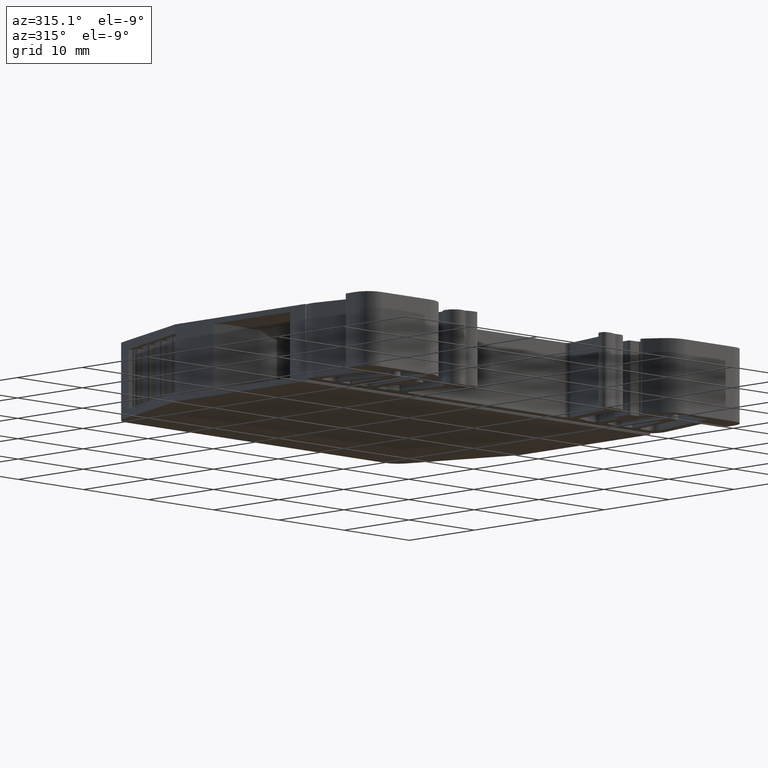
[diagram: clean part render]
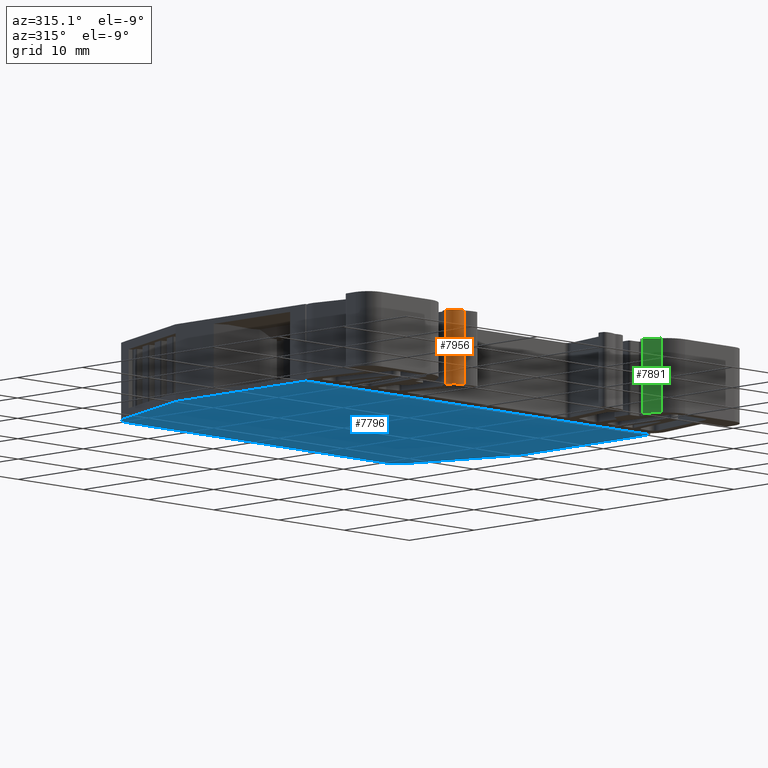
[diagram: same view with three faces highlighted in distinct colors, each labeled with its STEP entity id]
A machine part, auxiliary view with three faces highlighted in distinct colors.
Their STEP definitions:

[orange] entity #7956 — the highlighted cylindrical surface (edge-blend (fillet) strip) has radius 1.2453 mm, axis along (0, 0, -1).
#597 = EDGE_CURVE ( 'NONE', #11893, #8544, #10714, .T. ) ;
#618 = EDGE_CURVE ( 'NONE', #8541, #11869, #10746, .T. ) ;
#627 = EDGE_CURVE ( 'NONE', #8541, #11893, #4153, .T. ) ;
#653 = EDGE_CURVE ( 'NONE', #8544, #11869, #4250, .T. ) ;
#4048 = DIRECTION ( 'NONE',  ( 0.0000000000000000000, 0.0000000000000000000, -1.000000000000000000 ) ) ;
#4062 = DIRECTION ( 'NONE',  ( -1.000000000000000000, 0.0000000000000000000, 0.0000000000000000000 ) ) ;
#4067 = CARTESIAN_POINT ( 'NONE',  ( 543.5399750294640200, 246.4478890086091700, 8.193043958385491300 ) ) ;
#4092 = DIRECTION ( 'NONE',  ( 0.0000000000000000000, 0.0000000000000000000, -1.000000000000000000 ) ) ;
#4109 = DIRECTION ( 'NONE',  ( -1.000000000000000000, 0.0000000000000000000, 0.0000000000000000000 ) ) ;
#4118 = CARTESIAN_POINT ( 'NONE',  ( 543.5399750294640200, 246.4478890086091700, -0.006012645352508963500 ) ) ;
#4153 = LINE ( 'NONE', #4159, #10741 ) ;
#4156 = DIRECTION ( 'NONE',  ( -0.0000000000000000000, -0.0000000000000000000, 1.000000000000000000 ) ) ;
#4159 = CARTESIAN_POINT ( 'NONE',  ( 543.9342575827373600, 245.2666730820099600, 8.178043958385492500 ) ) ;
#4249 = CARTESIAN_POINT ( 'NONE',  ( 542.2946920106015800, 246.4478890086091700, 8.178043958385492500 ) ) ;
#4250 = LINE ( 'NONE', #4249, #10804 ) ;
#4254 = DIRECTION ( 'NONE',  ( 0.0000000000000000000, 0.0000000000000000000, -1.000000000000000000 ) ) ;
#6885 = CARTESIAN_POINT ( 'NONE',  ( 543.9342575827373600, 245.2666730820101000, -0.006012645352508963500 ) ) ;
#6930 = CARTESIAN_POINT ( 'NONE',  ( 542.2946920106015800, 246.4478890086091700, 8.193043958385491300 ) ) ;
#7201 = CARTESIAN_POINT ( 'NONE',  ( 543.9342575827373600, 245.2666730820101000, 8.193043958385491300 ) ) ;
#7210 = CARTESIAN_POINT ( 'NONE',  ( 542.2946920106015800, 246.4478890086091700, -0.006012645352508963500 ) ) ;
#7956 = ADVANCED_FACE ( 'NONE', ( #9217 ), #9224, .T. ) ;
#8152 = ORIENTED_EDGE ( 'NONE', *, *, #597, .T. ) ;
#8164 = ORIENTED_EDGE ( 'NONE', *, *, #627, .T. ) ;
#8194 = ORIENTED_EDGE ( 'NONE', *, *, #653, .T. ) ;
#8202 = ORIENTED_EDGE ( 'NONE', *, *, #618, .F. ) ;
#8541 = VERTEX_POINT ( 'NONE', #6885 ) ;
#8544 = VERTEX_POINT ( 'NONE', #6930 ) ;
#9185 = DIRECTION ( 'NONE',  ( 0.0000000000000000000, 0.0000000000000000000, -1.000000000000000000 ) ) ;
#9208 = CARTESIAN_POINT ( 'NONE',  ( 543.5399750294640200, 246.4478890086091700, 8.178043958385492500 ) ) ;
#9217 = FACE_OUTER_BOUND ( 'NONE', #13454, .T. ) ;
#9224 = CYLINDRICAL_SURFACE ( 'NONE', #10095, 1.245283018862508600 ) ;
#9230 = DIRECTION ( 'NONE',  ( -1.000000000000000000, 0.0000000000000000000, 0.0000000000000000000 ) ) ;
#10095 = AXIS2_PLACEMENT_3D ( 'NONE', #9208, #9185, #9230 ) ;
#10714 = CIRCLE ( 'NONE', #10719, 1.245283018862508600 ) ;
#10719 = AXIS2_PLACEMENT_3D ( 'NONE', #4067, #4048, #4062 ) ;
#10741 = VECTOR ( 'NONE', #4156, 1000.000000000000000 ) ;
#10742 = AXIS2_PLACEMENT_3D ( 'NONE', #4118, #4092, #4109 ) ;
#10746 = CIRCLE ( 'NONE', #10742, 1.245283018862508600 ) ;
#10804 = VECTOR ( 'NONE', #4254, 1000.000000000000000 ) ;
#11869 = VERTEX_POINT ( 'NONE', #7210 ) ;
#11893 = VERTEX_POINT ( 'NONE', #7201 ) ;
#13454 = EDGE_LOOP ( 'NONE', ( #8152, #8194, #8202, #8164 ) ) ;

[blue] entity #7796 — the highlighted planar face has unit normal (0, 0, -1).
#211 = EDGE_CURVE ( 'NONE', #14848, #14862, #13343, .T. ) ;
#234 = EDGE_CURVE ( 'NONE', #14785, #14848, #12932, .T. ) ;
#243 = EDGE_CURVE ( 'NONE', #14862, #14800, #12955, .T. ) ;
#5006 = CARTESIAN_POINT ( 'NONE',  ( 575.4885157894668700, 287.0702665175990700, -0.1554466076160027100 ) ) ;
#5010 = DIRECTION ( 'NONE',  ( 1.000000000000000000, 0.0000000000000000000, 0.0000000000000000000 ) ) ;
#5012 = DIRECTION ( 'NONE',  ( -0.0000000000000000000, -0.0000000000000000000, -1.000000000000000000 ) ) ;
#5034 = DIRECTION ( 'NONE',  ( 0.3419620949687317600, 0.9397137466295766300, 0.0000000000000000000 ) ) ;
#5051 = CARTESIAN_POINT ( 'NONE',  ( 529.2320559113798000, 274.9617252141479800, -0.1554466076160087300 ) ) ;
#5074 = LINE ( 'NONE', #5051, #12843 ) ;
#5099 = CARTESIAN_POINT ( 'NONE',  ( 577.3758297860100600, 287.7570606082853100, -0.1554466076160087300 ) ) ;
#5111 = LINE ( 'NONE', #5099, #12858 ) ;
#5112 = DIRECTION ( 'NONE',  ( 0.3419620949687205400, -0.9397137466295806300, 0.0000000000000000000 ) ) ;
#5115 = CARTESIAN_POINT ( 'NONE',  ( 535.7755960330605400, 287.0702665175990700, -0.1554466076160027100 ) ) ;
#5116 = DIRECTION ( 'NONE',  ( -0.0000000000000000000, -0.0000000000000000000, -1.000000000000000000 ) ) ;
#5120 = DIRECTION ( 'NONE',  ( 1.000000000000000000, 0.0000000000000000000, 0.0000000000000000000 ) ) ;
#5127 = LINE ( 'NONE', #5145, #12728 ) ;
#5128 = DIRECTION ( 'NONE',  ( 1.000000000000000000, -0.0000000000000000000, 0.0000000000000000000 ) ) ;
#5145 = CARTESIAN_POINT ( 'NONE',  ( 581.5822718384556500, 289.0786589704231900, -0.1554466076160087300 ) ) ;
#5377 = PLANE ( 'NONE',  #12838 ) ;
#5382 = FACE_OUTER_BOUND ( 'NONE', #12125, .T. ) ;
#5387 = DIRECTION ( 'NONE',  ( 0.0000000000000000000, 0.0000000000000000000, -1.000000000000000000 ) ) ;
#5411 = CARTESIAN_POINT ( 'NONE',  ( 581.5822718384556500, 275.0090101147802700, -0.1554466076160087300 ) ) ;
#5428 = DIRECTION ( 'NONE',  ( -1.000000000000000000, 0.0000000000000000000, -0.0000000000000000000 ) ) ;
#7691 = EDGE_CURVE ( 'NONE', #14755, #14787, #12808, .T. ) ;
#7702 = EDGE_CURVE ( 'NONE', #14800, #14790, #5074, .T. ) ;
#7725 = EDGE_CURVE ( 'NONE', #14787, #14785, #5111, .T. ) ;
#7726 = EDGE_CURVE ( 'NONE', #14790, #14810, #12868, .T. ) ;
#7738 = EDGE_CURVE ( 'NONE', #14810, #14755, #5127, .T. ) ;
#7796 = ADVANCED_FACE ( 'NONE', ( #5382 ), #5377, .T. ) ;
#10238 = VECTOR ( 'NONE', #12958, 1000.000000000000000 ) ;
#10261 = VECTOR ( 'NONE', #12942, 1000.000000000000000 ) ;
#10271 = VECTOR ( 'NONE', #13383, 1000.000000000000000 ) ;
#12125 = EDGE_LOOP ( 'NONE', ( #15224, #15185, #15220, #15235, #15275, #15282, #15231, #15206 ) ) ;
#12579 = CARTESIAN_POINT ( 'NONE',  ( 533.8882820365165600, 287.7570606082855400, -0.1554466076160027100 ) ) ;
#12607 = CARTESIAN_POINT ( 'NONE',  ( 575.4885157894668700, 289.0786589704217100, -0.1554466076160027100 ) ) ;
#12626 = CARTESIAN_POINT ( 'NONE',  ( 582.0320559111462400, 274.9617252141488300, -0.1554466076160067300 ) ) ;
#12629 = CARTESIAN_POINT ( 'NONE',  ( 577.3758297860100600, 287.7570606082852600, -0.1554466076160077000 ) ) ;
#12643 = CARTESIAN_POINT ( 'NONE',  ( 529.2320559113804800, 254.8277155743430200, -0.1554466076160087600 ) ) ;
#12666 = CARTESIAN_POINT ( 'NONE',  ( 535.7755960330605400, 289.0786589704235300, -0.1554466076160027100 ) ) ;
#12680 = CARTESIAN_POINT ( 'NONE',  ( 529.2320559113803700, 274.9617252141491700, -0.1554466076160067300 ) ) ;
#12682 = CARTESIAN_POINT ( 'NONE',  ( 582.0320559111478400, 254.8277155743430200, -0.1554466076160057300 ) ) ;
#12728 = VECTOR ( 'NONE', #5128, 1000.000000000000000 ) ;
#12808 = CIRCLE ( 'NONE', #12844, 2.008392452821250500 ) ;
#12838 = AXIS2_PLACEMENT_3D ( 'NONE', #5411, #5387, #5428 ) ;
#12843 = VECTOR ( 'NONE', #5034, 999.9999999999998900 ) ;
#12844 = AXIS2_PLACEMENT_3D ( 'NONE', #5006, #5012, #5010 ) ;
#12858 = VECTOR ( 'NONE', #5112, 1000.000000000000100 ) ;
#12862 = AXIS2_PLACEMENT_3D ( 'NONE', #5115, #5116, #5120 ) ;
#12868 = CIRCLE ( 'NONE', #12862, 2.008392452822138600 ) ;
#12932 = LINE ( 'NONE', #12956, #10261 ) ;
#12942 = DIRECTION ( 'NONE',  ( -0.0000000000000000000, -1.000000000000000000, -0.0000000000000000000 ) ) ;
#12955 = LINE ( 'NONE', #12957, #10238 ) ;
#12956 = CARTESIAN_POINT ( 'NONE',  ( 582.0320559111463600, 275.0090101147802700, -0.1554466076160087300 ) ) ;
#12957 = CARTESIAN_POINT ( 'NONE',  ( 529.2320559113804800, 275.0090101147802700, -0.1554466076160087300 ) ) ;
#12958 = DIRECTION ( 'NONE',  ( 0.0000000000000000000, 1.000000000000000000, 0.0000000000000000000 ) ) ;
#13343 = LINE ( 'NONE', #13358, #10271 ) ;
#13358 = CARTESIAN_POINT ( 'NONE',  ( 581.5822718384556500, 254.8277155743430200, -0.1554466076160087300 ) ) ;
#13383 = DIRECTION ( 'NONE',  ( -1.000000000000000000, 0.0000000000000000000, -0.0000000000000000000 ) ) ;
#14755 = VERTEX_POINT ( 'NONE', #12607 ) ;
#14785 = VERTEX_POINT ( 'NONE', #12626 ) ;
#14787 = VERTEX_POINT ( 'NONE', #12629 ) ;
#14790 = VERTEX_POINT ( 'NONE', #12579 ) ;
#14800 = VERTEX_POINT ( 'NONE', #12680 ) ;
#14810 = VERTEX_POINT ( 'NONE', #12666 ) ;
#14848 = VERTEX_POINT ( 'NONE', #12682 ) ;
#14862 = VERTEX_POINT ( 'NONE', #12643 ) ;
#15185 = ORIENTED_EDGE ( 'NONE', *, *, #211, .T. ) ;
#15206 = ORIENTED_EDGE ( 'NONE', *, *, #7725, .T. ) ;
#15220 = ORIENTED_EDGE ( 'NONE', *, *, #243, .T. ) ;
#15224 = ORIENTED_EDGE ( 'NONE', *, *, #234, .T. ) ;
#15231 = ORIENTED_EDGE ( 'NONE', *, *, #7691, .T. ) ;
#15235 = ORIENTED_EDGE ( 'NONE', *, *, #7702, .T. ) ;
#15275 = ORIENTED_EDGE ( 'NONE', *, *, #7726, .T. ) ;
#15282 = ORIENTED_EDGE ( 'NONE', *, *, #7738, .T. ) ;

[green] entity #7891 — the highlighted planar face has unit normal (0.8192, 0.5736, -0).
#239 = EDGE_CURVE ( 'NONE', #8508, #8799, #12944, .T. ) ;
#635 = EDGE_CURVE ( 'NONE', #11891, #8508, #4170, .T. ) ;
#848 = EDGE_CURVE ( 'NONE', #8612, #11891, #2884, .T. ) ;
#2870 = DIRECTION ( 'NONE',  ( -0.5735764981666714400, 0.8191520010052215600, 0.0000000000000000000 ) ) ;
#2872 = CARTESIAN_POINT ( 'NONE',  ( 572.7196490748942800, 243.8485706775394700, -0.006012645352508764900 ) ) ;
#2884 = LINE ( 'NONE', #2872, #11066 ) ;
#4132 = CARTESIAN_POINT ( 'NONE',  ( 571.5620452117174200, 245.5018000618045400, 8.178043958385492500 ) ) ;
#4137 = DIRECTION ( 'NONE',  ( 0.0000000000000000000, 0.0000000000000000000, 1.000000000000000000 ) ) ;
#4170 = LINE ( 'NONE', #4132, #10735 ) ;
#6890 = CARTESIAN_POINT ( 'NONE',  ( 571.5620452117173000, 245.5018000618044900, 8.193043958385491300 ) ) ;
#7024 = CARTESIAN_POINT ( 'NONE',  ( 572.7196490748942800, 243.8485706775395000, -0.006012645352509781400 ) ) ;
#7150 = CARTESIAN_POINT ( 'NONE',  ( 572.7196490748942800, 243.8485706775395000, 8.193043958385491300 ) ) ;
#7239 = CARTESIAN_POINT ( 'NONE',  ( 571.5620452117173000, 245.5018000618044900, -0.006012645352508963500 ) ) ;
#7891 = ADVANCED_FACE ( 'NONE', ( #8895 ), #8905, .F. ) ;
#7998 = EDGE_CURVE ( 'NONE', #8799, #8612, #9348, .T. ) ;
#8508 = VERTEX_POINT ( 'NONE', #6890 ) ;
#8612 = VERTEX_POINT ( 'NONE', #7024 ) ;
#8799 = VERTEX_POINT ( 'NONE', #7150 ) ;
#8872 = CARTESIAN_POINT ( 'NONE',  ( 549.5637498198177600, 276.9186167315600100, 8.178043958385492500 ) ) ;
#8895 = FACE_OUTER_BOUND ( 'NONE', #11902, .T. ) ;
#8905 = PLANE ( 'NONE',  #10059 ) ;
#8906 = DIRECTION ( 'NONE',  ( 0.8191520010052832900, 0.5735764981665831800, -0.0000000000000000000 ) ) ;
#8907 = DIRECTION ( 'NONE',  ( -0.5735764981665831800, 0.8191520010052832900, 0.0000000000000000000 ) ) ;
#9348 = LINE ( 'NONE', #9354, #10168 ) ;
#9354 = CARTESIAN_POINT ( 'NONE',  ( 572.7196490748943900, 243.8485706775395000, 8.178043958385492500 ) ) ;
#9370 = DIRECTION ( 'NONE',  ( -0.0000000000000000000, -0.0000000000000000000, -1.000000000000000000 ) ) ;
#10059 = AXIS2_PLACEMENT_3D ( 'NONE', #8872, #8906, #8907 ) ;
#10168 = VECTOR ( 'NONE', #9370, 1000.000000000000000 ) ;
#10259 = VECTOR ( 'NONE', #12921, 1000.000000000000000 ) ;
#10735 = VECTOR ( 'NONE', #4137, 1000.000000000000000 ) ;
#11066 = VECTOR ( 'NONE', #2870, 1000.000000000000000 ) ;
#11891 = VERTEX_POINT ( 'NONE', #7239 ) ;
#11902 = EDGE_LOOP ( 'NONE', ( #13850, #13941, #13864, #13898 ) ) ;
#12921 = DIRECTION ( 'NONE',  ( 0.5735764981666714400, -0.8191520010052215600, -0.0000000000000000000 ) ) ;
#12944 = LINE ( 'NONE', #12959, #10259 ) ;
#12959 = CARTESIAN_POINT ( 'NONE',  ( 572.7196490748942800, 243.8485706775394700, 8.193043958385491300 ) ) ;
#13850 = ORIENTED_EDGE ( 'NONE', *, *, #635, .F. ) ;
#13864 = ORIENTED_EDGE ( 'NONE', *, *, #7998, .F. ) ;
#13898 = ORIENTED_EDGE ( 'NONE', *, *, #239, .F. ) ;
#13941 = ORIENTED_EDGE ( 'NONE', *, *, #848, .F. ) ;